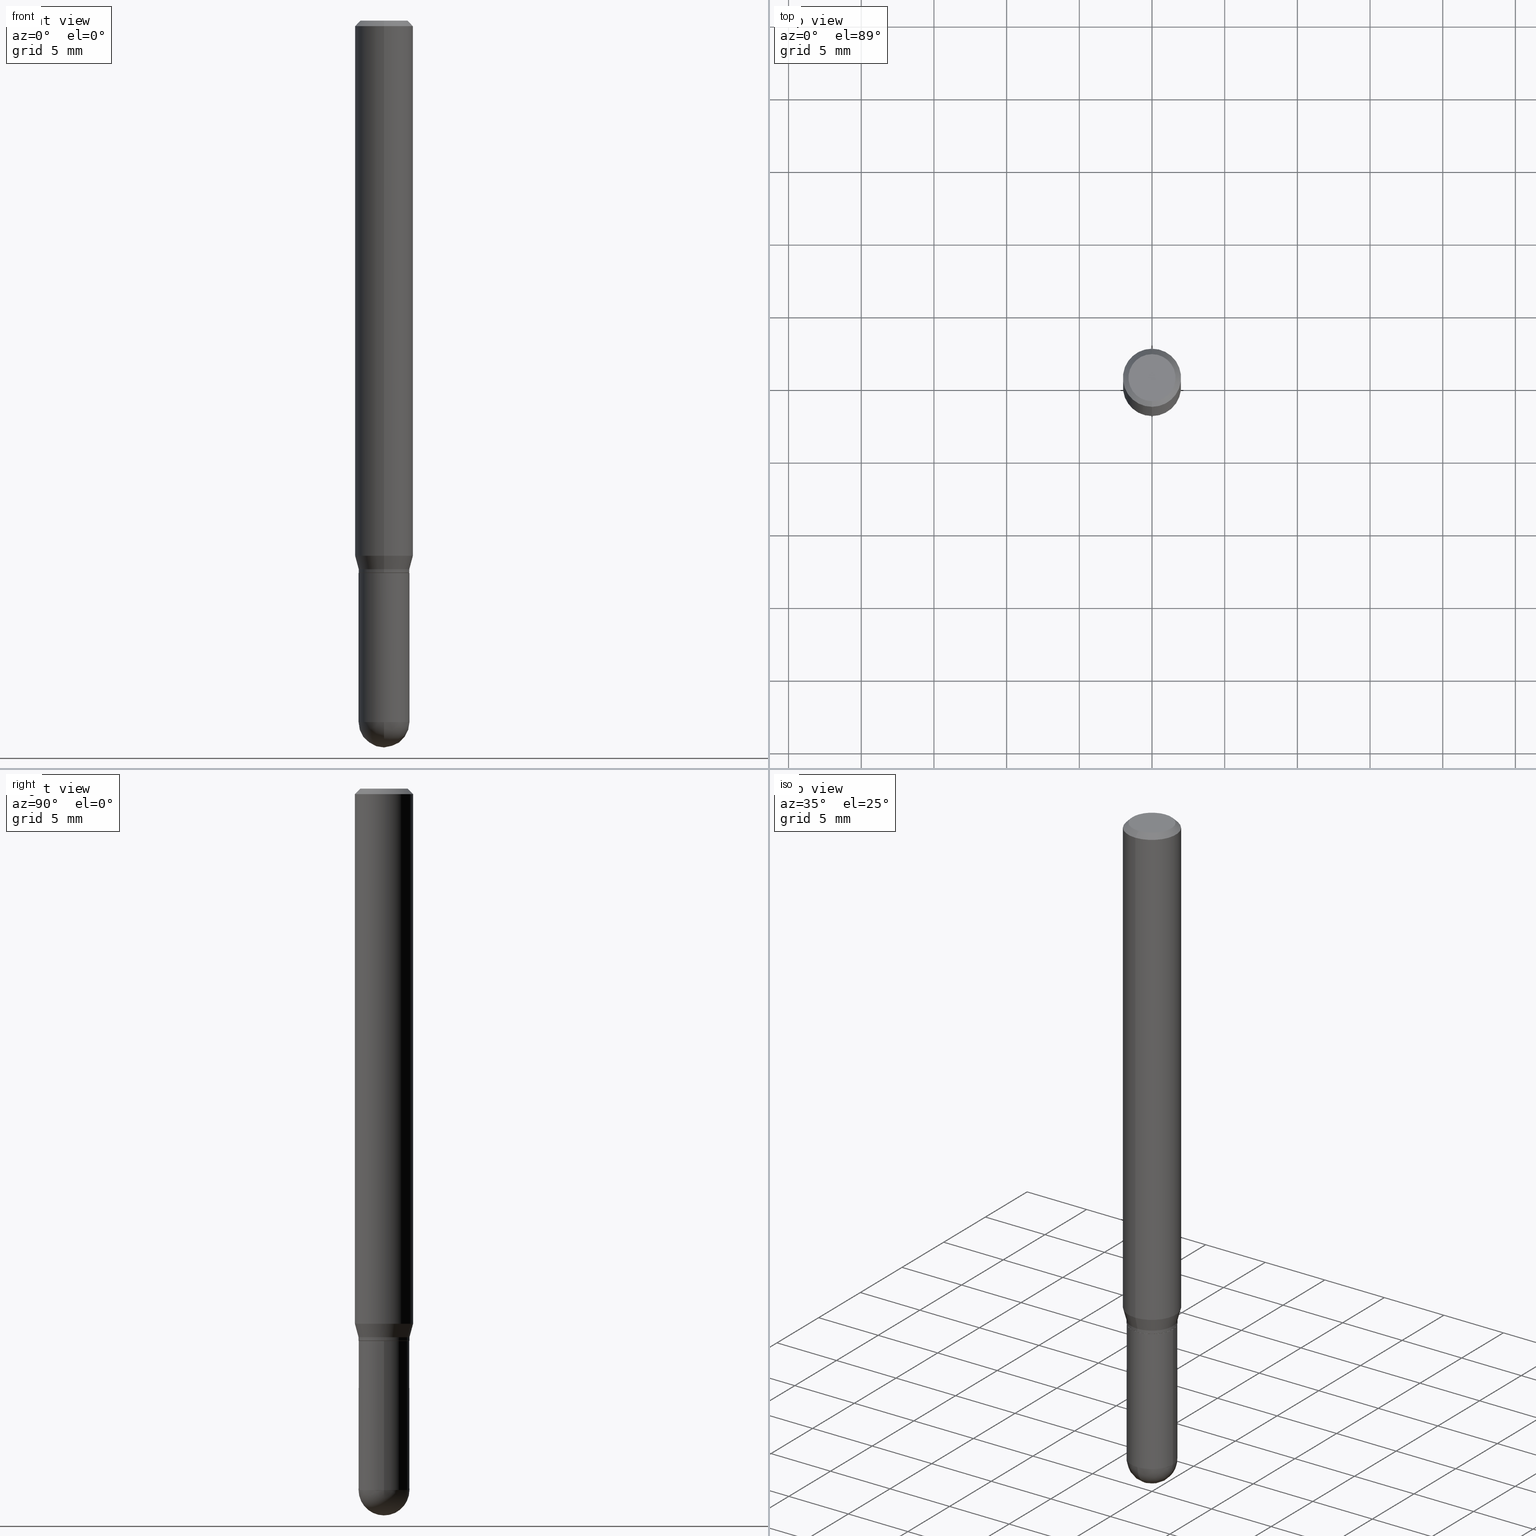
[diagram: canonical four-view strip — front | top / right | iso, engineering-drawing reading convention]
A machine part, canonical four-view strip (front | top / right | iso — engineering-drawing reading convention). The complete STEP part file that produces these views, byte-faithful:
ISO-10303-21;
HEADER;
FILE_DESCRIPTION (( 'STEP AP203' ),
    '1' );
FILE_NAME ('40526.STEP',
    '2024-03-08T13:01:02',
    ( '' ),
    ( '' ),
    'SwSTEP 2.0',
    'SolidWorks 2023',
    '' );
FILE_SCHEMA (( 'CONFIG_CONTROL_DESIGN' ));
ENDSEC;

DATA;
#1 = PERSON_AND_ORGANIZATION_ROLE ( 'creator' ) ;
#2 = LINE ( 'NONE', #61, #482 ) ;
#3 = CC_DESIGN_PERSON_AND_ORGANIZATION_ASSIGNMENT ( #377, #1, ( #405 ) ) ;
#4 = FACE_OUTER_BOUND ( 'NONE', #173, .T. ) ;
#5 = FACE_OUTER_BOUND ( 'NONE', #193, .T. ) ;
#6 = DIRECTION ( 'NONE',  ( 1.000000000000000000, -6.982962677686273021E-15, 0.000000000000000000 ) ) ;
#7 = CARTESIAN_POINT ( 'NONE',  ( 4.645412544229285965E-29, -6.632417951266439838E-15, -1.899600000000000177 ) ) ;
#8 = EDGE_CURVE ( 'NONE', #423, #178, #62, .T. ) ;
#9 = APPROVAL_PERSON_ORGANIZATION ( #468, #340, #112 ) ;
#10 = AXIS2_PLACEMENT_3D ( 'NONE', #34, #184, #345 ) ;
#11 = CC_DESIGN_PERSON_AND_ORGANIZATION_ASSIGNMENT ( #304, #471, ( #435 ) ) ;
#12 = AXIS2_PLACEMENT_3D ( 'NONE', #35, #185, #194 ) ;
#13 = CARTESIAN_POINT ( 'NONE',  ( -4.776346471537044438E-16, -0.06840000000000528990, -1.496099999999999541 ) ) ;
#14 = EDGE_LOOP ( 'NONE', ( #258, #502 ) ) ;
#15 = APPLICATION_CONTEXT ( 'configuration controlled 3d designs of mechanical parts and assemblies' ) ;
#16 = EDGE_CURVE ( 'NONE', #111, #494, #409, .T. ) ;
#17 = CARTESIAN_POINT ( 'NONE',  ( 5.595524044111143991E-16, 0.07874999999999994504, -0.01500000000000017292 ) ) ;
#18 = AXIS2_PLACEMENT_3D ( 'NONE', #239, #192, #351 ) ;
#19 = CC_DESIGN_APPROVAL ( #340, ( #405 ) ) ;
#20 = VERTEX_POINT ( 'NONE', #143 ) ;
#21 = CARTESIAN_POINT ( 'NONE',  ( 3.659741478239010346E-29, -5.222064914482659693E-15, -1.496099999999999985 ) ) ;
#22 = FACE_OUTER_BOUND ( 'NONE', #336, .T. ) ;
#23 = EDGE_CURVE ( 'NONE', #71, #271, #56, .T. ) ;
#24 = ORIENTED_EDGE ( 'NONE', *, *, #33, .T. ) ;
#25 = ORIENTED_EDGE ( 'NONE', *, *, #279, .T. ) ;
#26 = DIRECTION ( 'NONE',  ( -6.982962677686265922E-15, -1.000000000000000000, 3.490451784294271449E-15 ) ) ;
#27 = AXIS2_PLACEMENT_3D ( 'NONE', #195, #437, #281 ) ;
#28 = ORIENTED_EDGE ( 'NONE', *, *, #234, .T. ) ;
#29 = VERTEX_POINT ( 'NONE', #381 ) ;
#30 = PERSON_AND_ORGANIZATION ( #134, #85 ) ;
#31 = CARTESIAN_POINT ( 'NONE',  ( 4.975360907851465623E-16, 0.06375000000000000111, -1.198509431423783275E-16 ) ) ;
#32 = ORIENTED_EDGE ( 'NONE', *, *, #410, .F. ) ;
#33 = EDGE_CURVE ( 'NONE', #494, #178, #132, .T. ) ;
#34 = CARTESIAN_POINT ( 'NONE',  ( 3.669281610426094328E-31, -5.235677676441372167E-17, -0.01499999999999989710 ) ) ;
#35 = CARTESIAN_POINT ( 'NONE',  ( 0.000000000000000000, 0.000000000000000000, 0.000000000000000000 ) ) ;
#36 = LOCAL_TIME ( 8, 1, 2.000000000000000000, #380 ) ;
#37 = CONICAL_SURFACE ( 'NONE', #366, 0.06840000000000005798, 0.7853981633974739252 ) ;
#38 = ORIENTED_EDGE ( 'NONE', *, *, #398, .F. ) ;
#39 = AXIS2_PLACEMENT_3D ( 'NONE', #180, #339, #499 ) ;
#40 = SECURITY_CLASSIFICATION_LEVEL ( 'unclassified' ) ;
#41 = DIRECTION ( 'NONE',  ( -2.445468806185136877E-29, 3.491481338843145188E-15, 1.000000000000000000 ) ) ;
#42 = CARTESIAN_POINT ( 'NONE',  ( 3.545356026059983484E-29, -5.058848944146210267E-15, -1.449339299545445714 ) ) ;
#43 = EDGE_LOOP ( 'NONE', ( #102, #333, #295, #262 ) ) ;
#44 = DIRECTION ( 'NONE',  ( -2.446187740284079292E-29, 3.490451784294271843E-15, 1.000000000000000000 ) ) ;
#45 = DIRECTION ( 'NONE',  ( -6.982962677686266711E-15, -1.000000000000000000, 3.964946289788496674E-15 ) ) ;
#46 = CARTESIAN_POINT ( 'NONE',  ( 4.895639449387433642E-16, 0.06889999999999453506, -1.486100000000000199 ) ) ;
#47 = AXIS2_PLACEMENT_3D ( 'NONE', #428, #77, #393 ) ;
#48 = AXIS2_PLACEMENT_3D ( 'NONE', #447, #168, #450 ) ;
#49 = CARTESIAN_POINT ( 'NONE',  ( -4.776346471537044438E-16, -0.06840000000000528990, -1.496099999999999541 ) ) ;
#50 = FACE_OUTER_BOUND ( 'NONE', #140, .T. ) ;
#51 = DIRECTION ( 'NONE',  ( -2.446187740284079292E-29, 3.490451784294271843E-15, 1.000000000000000000 ) ) ;
#52 = DIRECTION ( 'NONE',  ( 1.000000000000000000, -6.982962677686273021E-15, 0.000000000000000000 ) ) ;
#53 = ORIENTED_EDGE ( 'NONE', *, *, #247, .T. ) ;
#54 = DIRECTION ( 'NONE',  ( 1.000000000000000000, -6.982962677686265922E-15, 4.876176775795935232E-29 ) ) ;
#55 = LOCAL_TIME ( 8, 1, 2.000000000000000000, #79 ) ;
#56 = CIRCLE ( 'NONE', #315, 0.06889999999999998903 ) ;
#57 = AXIS2_PLACEMENT_3D ( 'NONE', #509, #277, #75 ) ;
#58 = DIRECTION ( 'NONE',  ( -2.445468806185136597E-29, 3.491481338843145583E-15, 1.000000000000000000 ) ) ;
#59 = ORIENTED_EDGE ( 'NONE', *, *, #89, .F. ) ;
#60 = ORIENTED_EDGE ( 'NONE', *, *, #128, .T. ) ;
#61 = CARTESIAN_POINT ( 'NONE',  ( 4.895639449387079640E-16, 0.06889999999999986413, -2.404921279378748474E-16 ) ) ;
#62 = LINE ( 'NONE', #341, #302 ) ;
#63 = DESIGN_CONTEXT ( 'detailed design', #15, 'design' ) ;
#64 = AXIS2_PLACEMENT_3D ( 'NONE', #291, #495, #95 ) ;
#65 = DIRECTION ( 'NONE',  ( -6.982962677686266711E-15, -1.000000000000000000, 3.964946289788496674E-15 ) ) ;
#66 = ORIENTED_EDGE ( 'NONE', *, *, #89, .T. ) ;
#67 =( NAMED_UNIT ( * ) SI_UNIT ( $, .STERADIAN. ) SOLID_ANGLE_UNIT ( ) );
#68 = DIRECTION ( 'NONE',  ( -4.851104656540964275E-15, -0.7071067811865500152, -0.7071067811865450192 ) ) ;
#69 = DIRECTION ( 'NONE',  ( -2.446187740284079012E-29, 3.490451784294271449E-15, 1.000000000000000000 ) ) ;
#70 = ADVANCED_FACE ( 'NONE', ( #506 ), #151, .T. ) ;
#71 = VERTEX_POINT ( 'NONE', #318 ) ;
#72 = PERSON_AND_ORGANIZATION ( #134, #85 ) ;
#73 = PRODUCT_DEFINITION_SHAPE ( 'NONE', 'NONE',  #435 ) ;
#74 = CC_DESIGN_APPROVAL ( #157, ( #207 ) ) ;
#75 = DIRECTION ( 'NONE',  ( -6.982962677686265922E-15, -1.000000000000000000, 3.490451784294271843E-15 ) ) ;
#76 = AXIS2_PLACEMENT_3D ( 'NONE', #321, #313, #83 ) ;
#77 = DIRECTION ( 'NONE',  ( -2.446187740284079292E-29, 3.490451784294271843E-15, 1.000000000000000000 ) ) ;
#78 = ADVANCED_FACE ( 'NONE', ( #4 ), #37, .T. ) ;
#79 = COORDINATED_UNIVERSAL_TIME_OFFSET ( 5, 0, .BEHIND. ) ;
#80 = CARTESIAN_POINT ( 'NONE',  ( 0.06890000000000007230, -5.704731359535814187E-15, -1.496099999999999985 ) ) ;
#81 = CARTESIAN_POINT ( 'NONE',  ( 3.635279600836171081E-29, -5.187160396639717196E-15, -1.486099999999999977 ) ) ;
#82 = DIRECTION ( 'NONE',  ( 2.438088387897960049E-29, -3.491481338843145188E-15, -1.000000000000000000 ) ) ;
#83 = DIRECTION ( 'NONE',  ( -6.982962677686264344E-15, -1.000000000000000000, 3.490451784294271449E-15 ) ) ;
#84 = DIRECTION ( 'NONE',  ( -6.982962677686266711E-15, -1.000000000000000000, 3.964946289788496674E-15 ) ) ;
#85 = ORGANIZATION ( 'UNSPECIFIED', 'UNSPECIFIED', '' ) ;
#86 = DIRECTION ( 'NONE',  ( -2.445468806185136597E-29, 3.491481338843145583E-15, 1.000000000000000000 ) ) ;
#87 = AXIS2_PLACEMENT_3D ( 'NONE', #90, #51, #203 ) ;
#88 =( GEOMETRIC_REPRESENTATION_CONTEXT ( 3 ) GLOBAL_UNCERTAINTY_ASSIGNED_CONTEXT ( ( #172 ) ) GLOBAL_UNIT_ASSIGNED_CONTEXT ( ( #404, #205, #67 ) ) REPRESENTATION_CONTEXT ( 'NONE', 'WORKASPACE' ) );
#89 = EDGE_CURVE ( 'NONE', #423, #111, #220, .T. ) ;
#90 = CARTESIAN_POINT ( 'NONE',  ( 0.000000000000000000, 0.000000000000000000, 0.000000000000000000 ) ) ;
#91 = CARTESIAN_POINT ( 'NONE',  ( 3.658518384368868748E-29, -5.220319688590513476E-15, -1.495600000000000041 ) ) ;
#92 = EDGE_CURVE ( 'NONE', #347, #20, #107, .T. ) ;
#93 = CARTESIAN_POINT ( 'NONE',  ( -0.06890000000000007230, 4.895639449387095418E-16, -3.389146277185633520E-30 ) ) ;
#94 = CARTESIAN_POINT ( 'NONE',  ( 4.851357352610053575E-29, -6.819347608944073688E-15, -1.968500000000000139 ) ) ;
#95 = DIRECTION ( 'NONE',  ( -6.982962677686266711E-15, -1.000000000000000000, 3.993929815298627073E-15 ) ) ;
#96 = ORIENTED_EDGE ( 'NONE', *, *, #432, .T. ) ;
#97 = CIRCLE ( 'NONE', #266, 0.06375000000000000111 ) ;
#98 = DIRECTION ( 'NONE',  ( 2.446187740284079292E-29, -3.490451784294271449E-15, -1.000000000000000000 ) ) ;
#99 = AXIS2_PLACEMENT_3D ( 'NONE', #476, #82, #123 ) ;
#100 = CC_DESIGN_DATE_AND_TIME_ASSIGNMENT ( #348, #511, ( #207 ) ) ;
#101 = DIRECTION ( 'NONE',  ( -2.446187740284079012E-29, 3.490451784294271449E-15, 1.000000000000000000 ) ) ;
#102 = ORIENTED_EDGE ( 'NONE', *, *, #206, .T. ) ;
#103 = ORIENTED_EDGE ( 'NONE', *, *, #8, .T. ) ;
#104 = VERTEX_POINT ( 'NONE', #479 ) ;
#105 = CALENDAR_DATE ( 2024, 8, 3 ) ;
#106 = EDGE_CURVE ( 'NONE', #459, #29, #375, .T. ) ;
#107 = CIRCLE ( 'NONE', #385, 0.06890000000000007230 ) ;
#108 = LINE ( 'NONE', #267, #124 ) ;
#109 = ORIENTED_EDGE ( 'NONE', *, *, #442, .T. ) ;
#110 = ORIENTED_EDGE ( 'NONE', *, *, #403, .T. ) ;
#111 = VERTEX_POINT ( 'NONE', #359 ) ;
#112 = APPROVAL_ROLE ( '' ) ;
#113 = EDGE_CURVE ( 'NONE', #272, #111, #323, .T. ) ;
#114 = VERTEX_POINT ( 'NONE', #154 ) ;
#115 = PERSON_AND_ORGANIZATION ( #134, #85 ) ;
#116 = CARTESIAN_POINT ( 'NONE',  ( 3.659741478239010346E-29, -5.222064914482659693E-15, -1.496099999999999985 ) ) ;
#117 = AXIS2_PLACEMENT_3D ( 'NONE', #125, #278, #120 ) ;
#118 = CARTESIAN_POINT ( 'NONE',  ( 0.06890000000000008618, -6.409137719647418882E-15, -1.899600000000000177 ) ) ;
#119 = SHAPE_DEFINITION_REPRESENTATION ( #73, #480 ) ;
#120 = DIRECTION ( 'NONE',  ( 6.982962677686265922E-15, 1.000000000000000000, -3.964946289788482474E-15 ) ) ;
#121 = CARTESIAN_POINT ( 'NONE',  ( 3.669281610426094328E-31, -5.235677676441372167E-17, -0.01499999999999989710 ) ) ;
#122 = EDGE_CURVE ( 'NONE', #378, #268, #276, .T. ) ;
#123 = DIRECTION ( 'NONE',  ( -1.000000000000000000, 6.982962677686265922E-15, -4.876176775795935793E-29 ) ) ;
#124 = VECTOR ( 'NONE', #68, 39.37007874015748143 ) ;
#125 = CARTESIAN_POINT ( 'NONE',  ( 4.679918503997674770E-29, -6.583003452920844326E-15, -1.899600000000000177 ) ) ;
#126 = VECTOR ( 'NONE', #390, 39.37007874015748854 ) ;
#127 = CIRCLE ( 'NONE', #64, 0.06840000000000005798 ) ;
#128 = EDGE_CURVE ( 'NONE', #111, #423, #334, .T. ) ;
#129 = CARTESIAN_POINT ( 'NONE',  ( -4.811261284925827524E-16, -0.06889999999999986413, 2.404921279378748474E-16 ) ) ;
#130 = ADVANCED_FACE ( 'NONE', ( #5 ), #444, .T. ) ;
#131 = MANIFOLD_SOLID_BREP ( 'Body-Move/Copy2[1]', #355 ) ;
#132 = CIRCLE ( 'NONE', #10, 0.07875000000000000056 ) ;
#133 = CARTESIAN_POINT ( 'NONE',  ( 5.499083108677937401E-16, 0.07874999999999994504, -0.01500000000000017292 ) ) ;
#134 = PERSON ( 'UNSPECIFIED', 'UNSPECIFIED', 'UNSPECIFIED', ('UNSPECIFIED'), ('UNSPECIFIED'), ('UNSPECIFIED') ) ;
#135 = PLANE ( 'NONE',  #451 ) ;
#136 = ADVANCED_FACE ( 'NONE', ( #50 ), #285, .T. ) ;
#137 = ORIENTED_EDGE ( 'NONE', *, *, #153, .F. ) ;
#138 =( LENGTH_UNIT ( ) NAMED_UNIT ( * ) SI_UNIT ( $, .METRE. ) );
#139 = ADVANCED_FACE ( 'NONE', ( #156 ), #453, .T. ) ;
#140 = EDGE_LOOP ( 'NONE', ( #445, #226, #455, #310 ) ) ;
#141 = PERSON_AND_ORGANIZATION_ROLE ( 'classification_officer' ) ;
#142 = CARTESIAN_POINT ( 'NONE',  ( -4.811261284925468592E-16, -0.06890000000000517932, -1.495599999999999818 ) ) ;
#143 = CARTESIAN_POINT ( 'NONE',  ( -0.06890000000000007230, -5.438447646216124813E-15, -1.496099999999999985 ) ) ;
#144 = EDGE_LOOP ( 'NONE', ( #174, #470 ) ) ;
#145 = LOCAL_TIME ( 8, 1, 2.000000000000000000, #465 ) ;
#146 = AXIS2_PLACEMENT_3D ( 'NONE', #42, #242, #395 ) ;
#147 = FACE_OUTER_BOUND ( 'NONE', #463, .T. ) ;
#148 = CARTESIAN_POINT ( 'NONE',  ( 5.595524044110786045E-16, 0.07874999999999997280, -2.748730780131737952E-16 ) ) ;
#149 = ORIENTED_EDGE ( 'NONE', *, *, #384, .F. ) ;
#150 = APPROVAL_ROLE ( '' ) ;
#151 = CYLINDRICAL_SURFACE ( 'NONE', #18, 0.06890000000000007230 ) ;
#152 = COORDINATED_UNIVERSAL_TIME_OFFSET ( 5, 0, .BEHIND. ) ;
#153 = EDGE_CURVE ( 'NONE', #178, #494, #488, .T. ) ;
#154 = CARTESIAN_POINT ( 'NONE',  ( 4.811261284926304785E-16, 0.06889999999999341096, -1.899600000000000399 ) ) ;
#155 = DIRECTION ( 'NONE',  ( -1.807323732225323828E-15, -0.2588190451025172978, 0.9659258262890690894 ) ) ;
#156 = FACE_OUTER_BOUND ( 'NONE', #188, .T. ) ;
#157 = APPROVAL ( #179, 'UNSPECIFIED' ) ;
#158 = DIRECTION ( 'NONE',  ( -2.445468806185136597E-29, 3.491481338843145583E-15, 1.000000000000000000 ) ) ;
#159 = DIRECTION ( 'NONE',  ( 1.000000000000000000, -6.982962677686273021E-15, 0.000000000000000000 ) ) ;
#160 = EDGE_LOOP ( 'NONE', ( #109, #110, #289, #414, #307 ) ) ;
#161 = CARTESIAN_POINT ( 'NONE',  ( -5.499083108677930499E-16, -0.07875000000000004219, -0.01499999999999962301 ) ) ;
#162 = AXIS2_PLACEMENT_3D ( 'NONE', #200, #357, #400 ) ;
#163 = CONICAL_SURFACE ( 'NONE', #484, 0.07875000000000000056, 0.7853981633974483900 ) ;
#164 = EDGE_CURVE ( 'NONE', #29, #167, #218, .T. ) ;
#165 = CARTESIAN_POINT ( 'NONE',  ( 4.451638707024993845E-16, 0.06375000000000000111, -1.711836221955690772E-16 ) ) ;
#166 = CIRCLE ( 'NONE', #209, 0.06890000000000007230 ) ;
#167 = VERTEX_POINT ( 'NONE', #118 ) ;
#168 = DIRECTION ( 'NONE',  ( -2.445468806185136597E-29, 3.491481338843145583E-15, 1.000000000000000000 ) ) ;
#169 = DIRECTION ( 'NONE',  ( -6.982962677686265922E-15, -1.000000000000000000, 3.964946289788481685E-15 ) ) ;
#170 = LINE ( 'NONE', #133, #199 ) ;
#171 = VERTEX_POINT ( 'NONE', #481 ) ;
#172 = UNCERTAINTY_MEASURE_WITH_UNIT (LENGTH_MEASURE( 1.000000000000000082E-05 ), #404, 'distance_accuracy_value', 'NONE');
#173 = EDGE_LOOP ( 'NONE', ( #497, #96, #303, #496 ) ) ;
#174 = ORIENTED_EDGE ( 'NONE', *, *, #92, .T. ) ;
#175 = DIRECTION ( 'NONE',  ( -2.446187740284079292E-29, 3.490451784294271843E-15, 1.000000000000000000 ) ) ;
#176 = ADVANCED_FACE ( 'NONE', ( #477 ), #441, .T. ) ;
#177 = VERTEX_POINT ( 'NONE', #360 ) ;
#178 = VERTEX_POINT ( 'NONE', #161 ) ;
#179 = APPROVAL_STATUS ( 'not_yet_approved' ) ;
#180 = CARTESIAN_POINT ( 'NONE',  ( 4.679918503997674770E-29, -6.583003452920844326E-15, -1.899600000000000177 ) ) ;
#181 = EDGE_LOOP ( 'NONE', ( #407, #219, #460, #25, #149 ) ) ;
#182 = PERSON_AND_ORGANIZATION_ROLE ( 'design_owner' ) ;
#183 = CARTESIAN_POINT ( 'NONE',  ( 0.06890000000000007230, -4.811261284925842315E-16, 3.359685798523402771E-30 ) ) ;
#184 = DIRECTION ( 'NONE',  ( -2.446187740284079292E-29, 3.490451784294271843E-15, 1.000000000000000000 ) ) ;
#185 = DIRECTION ( 'NONE',  ( 0.000000000000000000, 0.000000000000000000, 1.000000000000000000 ) ) ;
#186 = AXIS2_PLACEMENT_3D ( 'NONE', #392, #158, #283 ) ;
#187 = CIRCLE ( 'NONE', #415, 0.06890000000000007230 ) ;
#188 = EDGE_LOOP ( 'NONE', ( #293, #53, #327, #500 ) ) ;
#189 = CALENDAR_DATE ( 2024, 8, 3 ) ;
#190 = APPROVAL ( #338, 'UNSPECIFIED' ) ;
#191 = LINE ( 'NONE', #93, #344 ) ;
#192 = DIRECTION ( 'NONE',  ( -2.445468806185136597E-29, 3.491481338843145583E-15, 1.000000000000000000 ) ) ;
#193 = EDGE_LOOP ( 'NONE', ( #337, #38, #461, #24 ) ) ;
#194 = DIRECTION ( 'NONE',  ( 1.000000000000000000, 0.000000000000000000, 0.000000000000000000 ) ) ;
#195 = CARTESIAN_POINT ( 'NONE',  ( 3.669281610426094328E-31, -5.235677676441372167E-17, -0.01499999999999989710 ) ) ;
#196 = FACE_OUTER_BOUND ( 'NONE', #379, .T. ) ;
#197 = AXIS2_PLACEMENT_3D ( 'NONE', #121, #399, #316 ) ;
#198 = ADVANCED_FACE ( 'NONE', ( #486 ), #274, .T. ) ;
#199 = VECTOR ( 'NONE', #332, 39.37007874015748143 ) ;
#200 = CARTESIAN_POINT ( 'NONE',  ( 3.545356026059983484E-29, -5.058848944146210267E-15, -1.449339299545445714 ) ) ;
#201 = CARTESIAN_POINT ( 'NONE',  ( 3.658665880933582389E-29, -5.223605231043229660E-15, -1.496099999999999985 ) ) ;
#202 = DIRECTION ( 'NONE',  ( -2.446187740284079292E-29, 3.490451784294271843E-15, 1.000000000000000000 ) ) ;
#203 = DIRECTION ( 'NONE',  ( -6.982962677686265922E-15, -1.000000000000000000, 3.490451784294271449E-15 ) ) ;
#204 = DIRECTION ( 'NONE',  ( -2.446187740284079012E-29, 3.490451784294271449E-15, 1.000000000000000000 ) ) ;
#205 =( NAMED_UNIT ( * ) PLANE_ANGLE_UNIT ( ) SI_UNIT ( $, .RADIAN. ) );
#206 = EDGE_CURVE ( 'NONE', #271, #71, #287, .T. ) ;
#207 = SECURITY_CLASSIFICATION ( '', '', #40 ) ;
#208 = EDGE_CURVE ( 'NONE', #104, #29, #166, .T. ) ;
#209 = AXIS2_PLACEMENT_3D ( 'NONE', #401, #58, #52 ) ;
#210 = AXIS2_PLACEMENT_3D ( 'NONE', #294, #462, #65 ) ;
#211 = EDGE_CURVE ( 'NONE', #271, #177, #369, .T. ) ;
#212 = CARTESIAN_POINT ( 'NONE',  ( 0.000000000000000000, 0.000000000000000000, 0.000000000000000000 ) ) ;
#213 = DIRECTION ( 'NONE',  ( 6.982962677686265922E-15, 1.000000000000000000, 0.000000000000000000 ) ) ;
#214 = DIRECTION ( 'NONE',  ( -2.446187740284079012E-29, 3.490451784294271449E-15, 1.000000000000000000 ) ) ;
#215 = FACE_OUTER_BOUND ( 'NONE', #259, .T. ) ;
#216 = CC_DESIGN_PERSON_AND_ORGANIZATION_ASSIGNMENT ( #72, #228, ( #405 ) ) ;
#217 = ORIENTED_EDGE ( 'NONE', *, *, #153, .T. ) ;
#218 = CIRCLE ( 'NONE', #263, 0.06890000000000007230 ) ;
#219 = ORIENTED_EDGE ( 'NONE', *, *, #208, .T. ) ;
#220 = CIRCLE ( 'NONE', #146, 0.07874999999999997280 ) ;
#221 = FACE_OUTER_BOUND ( 'NONE', #411, .T. ) ;
#222 = VERTEX_POINT ( 'NONE', #13 ) ;
#223 = EDGE_LOOP ( 'NONE', ( #66, #424, #137, #363 ) ) ;
#224 = DIRECTION ( 'NONE',  ( -6.982962677686265922E-15, -1.000000000000000000, 3.964946289788481685E-15 ) ) ;
#225 = APPROVAL_DATE_TIME ( #342, #190 ) ;
#226 = ORIENTED_EDGE ( 'NONE', *, *, #237, .T. ) ;
#227 = ORIENTED_EDGE ( 'NONE', *, *, #370, .T. ) ;
#228 = PERSON_AND_ORGANIZATION_ROLE ( 'design_supplier' ) ;
#229 = CC_DESIGN_APPROVAL ( #190, ( #435 ) ) ;
#230 = AXIS2_PLACEMENT_3D ( 'NONE', #21, #175, #330 ) ;
#231 = DIRECTION ( 'NONE',  ( -4.937700262164674260E-15, -0.7071067811865632269, 0.7071067811865319186 ) ) ;
#232 = DIRECTION ( 'NONE',  ( -1.000000000000000000, 7.105427357601001070E-15, -4.926315508542082329E-29 ) ) ;
#233 = DATE_AND_TIME ( #387, #145 ) ;
#234 = EDGE_CURVE ( 'NONE', #177, #272, #284, .T. ) ;
#235 = DIRECTION ( 'NONE',  ( -2.445468806185136597E-29, 3.491481338843145583E-15, 1.000000000000000000 ) ) ;
#236 = DIRECTION ( 'NONE',  ( -2.446187740284079292E-29, 3.490451784294271843E-15, 1.000000000000000000 ) ) ;
#237 = EDGE_CURVE ( 'NONE', #459, #114, #483, .T. ) ;
#238 = DIRECTION ( 'NONE',  ( -2.446187740284079292E-29, 3.490451784294271843E-15, 1.000000000000000000 ) ) ;
#239 = CARTESIAN_POINT ( 'NONE',  ( 0.000000000000000000, 0.000000000000000000, 0.000000000000000000 ) ) ;
#240 = LINE ( 'NONE', #49, #255 ) ;
#241 = AXIS2_PLACEMENT_3D ( 'NONE', #81, #202, #45 ) ;
#242 = DIRECTION ( 'NONE',  ( -2.446187740284079292E-29, 3.490451784294271843E-15, 1.000000000000000000 ) ) ;
#243 = CARTESIAN_POINT ( 'NONE',  ( 3.659741478239010346E-29, -5.222064914482659693E-15, -1.496099999999999985 ) ) ;
#244 = AXIS2_PLACEMENT_3D ( 'NONE', #431, #232, #434 ) ;
#245 = ORIENTED_EDGE ( 'NONE', *, *, #106, .T. ) ;
#246 = DIRECTION ( 'NONE',  ( -2.446187740284079292E-29, 3.490451784294271449E-15, 1.000000000000000000 ) ) ;
#247 = EDGE_CURVE ( 'NONE', #272, #177, #292, .T. ) ;
#248 = ORIENTED_EDGE ( 'NONE', *, *, #297, .F. ) ;
#249 = CC_DESIGN_PERSON_AND_ORGANIZATION_ASSIGNMENT ( #275, #141, ( #207 ) ) ;
#250 = LENGTH_MEASURE_WITH_UNIT ( LENGTH_MEASURE( 0.02539999999999999897 ), #138 );
#251 = VECTOR ( 'NONE', #368, 39.37007874015748143 ) ;
#252 = ADVANCED_FACE ( 'NONE', ( #221 ), #456, .T. ) ;
#253 = ORIENTED_EDGE ( 'NONE', *, *, #23, .F. ) ;
#254 = AXIS2_PLACEMENT_3D ( 'NONE', #261, #413, #213 ) ;
#255 = VECTOR ( 'NONE', #231, 39.37007874015748143 ) ;
#256 = DIRECTION ( 'NONE',  ( 6.982962677686265922E-15, 1.000000000000000000, -3.490451784294271449E-15 ) ) ;
#257 = FACE_OUTER_BOUND ( 'NONE', #181, .T. ) ;
#258 = ORIENTED_EDGE ( 'NONE', *, *, #501, .F. ) ;
#259 = EDGE_LOOP ( 'NONE', ( #382, #376 ) ) ;
#260 = CARTESIAN_POINT ( 'NONE',  ( -5.499083108677578469E-16, -0.07875000000000501044, -1.449339299545445270 ) ) ;
#261 = CARTESIAN_POINT ( 'NONE',  ( 4.679918503997674770E-29, -6.583003452920844326E-15, -1.899600000000000177 ) ) ;
#262 = ORIENTED_EDGE ( 'NONE', *, *, #211, .F. ) ;
#263 = AXIS2_PLACEMENT_3D ( 'NONE', #7, #86, #159 ) ;
#264 = ORIENTED_EDGE ( 'NONE', *, *, #432, .F. ) ;
#265 = DATE_AND_TIME ( #425, #438 ) ;
#266 = AXIS2_PLACEMENT_3D ( 'NONE', #389, #44, #443 ) ;
#267 = CARTESIAN_POINT ( 'NONE',  ( -5.402642173245076924E-16, -0.07875000000000004219, -0.01499999999999962301 ) ) ;
#268 = VERTEX_POINT ( 'NONE', #31 ) ;
#269 = DATE_TIME_ROLE ( 'creation_date' ) ;
#270 = DIRECTION ( 'NONE',  ( 2.446187740284079292E-29, -3.490451784294271843E-15, -1.000000000000000000 ) ) ;
#271 = VERTEX_POINT ( 'NONE', #142 ) ;
#272 = VERTEX_POINT ( 'NONE', #299 ) ;
#273 = LINE ( 'NONE', #433, #367 ) ;
#274 = CYLINDRICAL_SURFACE ( 'NONE', #47, 0.06889999999999986413 ) ;
#275 = PERSON_AND_ORGANIZATION ( #134, #85 ) ;
#276 = CIRCLE ( 'NONE', #76, 0.06375000000000000111 ) ;
#277 = DIRECTION ( 'NONE',  ( -2.446187740284079292E-29, 3.490451784294271843E-15, 1.000000000000000000 ) ) ;
#278 = DIRECTION ( 'NONE',  ( -1.000000000000000000, 6.982962677686265922E-15, -4.883557194083112901E-29 ) ) ;
#279 = EDGE_CURVE ( 'NONE', #167, #347, #504, .T. ) ;
#280 = DIRECTION ( 'NONE',  ( 1.000000000000000000, -6.982962677686273021E-15, 0.000000000000000000 ) ) ;
#281 = DIRECTION ( 'NONE',  ( -6.982962677686264344E-15, -1.000000000000000000, 3.496114991891765576E-15 ) ) ;
#282 = APPROVAL_PERSON_ORGANIZATION ( #30, #157, #150 ) ;
#283 = DIRECTION ( 'NONE',  ( 1.000000000000000000, -6.982962677686273021E-15, 0.000000000000000000 ) ) ;
#284 = CIRCLE ( 'NONE', #346, 0.06889999999999972535 ) ;
#285 = SPHERICAL_SURFACE ( 'NONE', #117, 0.06889999999999996128 ) ;
#286 = EDGE_CURVE ( 'NONE', #378, #178, #108, .T. ) ;
#287 = CIRCLE ( 'NONE', #439, 0.06889999999999998903 ) ;
#288 = CC_DESIGN_SECURITY_CLASSIFICATION ( #207, ( #405 ) ) ;
#289 = ORIENTED_EDGE ( 'NONE', *, *, #92, .F. ) ;
#290 = ADVANCED_FACE ( 'NONE', ( #147 ), #163, .T. ) ;
#291 = CARTESIAN_POINT ( 'NONE',  ( 3.659741478239010346E-29, -5.222064914482659693E-15, -1.496099999999999985 ) ) ;
#292 = CIRCLE ( 'NONE', #210, 0.06889999999999972535 ) ;
#293 = ORIENTED_EDGE ( 'NONE', *, *, #113, .F. ) ;
#294 = CARTESIAN_POINT ( 'NONE',  ( 3.635279600836171081E-29, -5.187160396639717196E-15, -1.486099999999999977 ) ) ;
#295 = ORIENTED_EDGE ( 'NONE', *, *, #234, .F. ) ;
#296 = ORIENTED_EDGE ( 'NONE', *, *, #33, .F. ) ;
#297 = EDGE_CURVE ( 'NONE', #177, #423, #273, .T. ) ;
#298 = MECHANICAL_CONTEXT ( 'NONE', #362, 'mechanical' ) ;
#299 = CARTESIAN_POINT ( 'NONE',  ( 5.245581746749287830E-16, 0.06889999999999453506, -1.486100000000000199 ) ) ;
#300 = AXIS2_PLACEMENT_3D ( 'NONE', #397, #430, #84 ) ;
#301 = DIRECTION ( 'NONE',  ( -2.446187740284079292E-29, 3.490451784294271843E-15, 1.000000000000000000 ) ) ;
#302 = VECTOR ( 'NONE', #69, 39.37007874015748143 ) ;
#303 = ORIENTED_EDGE ( 'NONE', *, *, #206, .F. ) ;
#304 = PERSON_AND_ORGANIZATION ( #134, #85 ) ;
#305 = CONICAL_SURFACE ( 'NONE', #300, 0.06889999999999972535, 0.2617993877991494078 ) ;
#306 = CARTESIAN_POINT ( 'NONE',  ( 3.669281610426094328E-31, -5.235677676441372167E-17, -0.01499999999999989710 ) ) ;
#307 = ORIENTED_EDGE ( 'NONE', *, *, #394, .T. ) ;
#308 = APPLICATION_PROTOCOL_DEFINITION ( 'international standard', 'config_control_design', 1994, #15 ) ;
#309 = ADVANCED_FACE ( 'NONE', ( #426 ), #312, .F. ) ;
#310 = ORIENTED_EDGE ( 'NONE', *, *, #164, .F. ) ;
#311 = ORIENTED_EDGE ( 'NONE', *, *, #122, .F. ) ;
#312 = PLANE ( 'NONE',  #329 ) ;
#313 = DIRECTION ( 'NONE',  ( -2.446187740284079292E-29, 3.490451784294271843E-15, 1.000000000000000000 ) ) ;
#314 = DATE_AND_TIME ( #391, #55 ) ;
#315 = AXIS2_PLACEMENT_3D ( 'NONE', #372, #301, #224 ) ;
#316 = DIRECTION ( 'NONE',  ( 6.982962677686264344E-15, 1.000000000000000000, -3.496114991891765576E-15 ) ) ;
#317 = DIRECTION ( 'NONE',  ( -6.982962677686265922E-15, -1.000000000000000000, 3.490451784294271449E-15 ) ) ;
#318 = CARTESIAN_POINT ( 'NONE',  ( 4.895639449387457308E-16, 0.06889999999999479874, -1.495600000000000263 ) ) ;
#319 = ADVANCED_FACE ( 'NONE', ( #353 ), #478, .F. ) ;
#320 = CYLINDRICAL_SURFACE ( 'NONE', #57, 0.06889999999999986413 ) ;
#321 = CARTESIAN_POINT ( 'NONE',  ( -2.511387403517051267E-45, 3.583484823876296715E-31, 1.026653581063814996E-16 ) ) ;
#322 = CIRCLE ( 'NONE', #186, 0.06890000000000007230 ) ;
#323 = LINE ( 'NONE', #46, #126 ) ;
#324 = ADVANCED_FACE ( 'NONE', ( #356 ), #507, .T. ) ;
#325 = ADVANCED_FACE ( 'NONE', ( #196 ), #320, .T. ) ;
#326 = CARTESIAN_POINT ( 'NONE',  ( 3.635279600836171081E-29, -5.187160396639717196E-15, -1.486099999999999977 ) ) ;
#327 = ORIENTED_EDGE ( 'NONE', *, *, #297, .T. ) ;
#328 = VECTOR ( 'NONE', #214, 39.37007874015748143 ) ;
#329 = AXIS2_PLACEMENT_3D ( 'NONE', #472, #246, #317 ) ;
#330 = DIRECTION ( 'NONE',  ( -6.982962677686266711E-15, -1.000000000000000000, 3.993929815298627073E-15 ) ) ;
#331 = LINE ( 'NONE', #446, #251 ) ;
#332 = DIRECTION ( 'NONE',  ( 4.937700262164548042E-15, 0.7071067811865451302, -0.7071067811865499042 ) ) ;
#333 = ORIENTED_EDGE ( 'NONE', *, *, #410, .T. ) ;
#334 = CIRCLE ( 'NONE', #162, 0.07874999999999997280 ) ;
#335 = ADVANCED_FACE ( 'NONE', ( #358 ), #305, .T. ) ;
#336 = EDGE_LOOP ( 'NONE', ( #402, #60, #103, #296 ) ) ;
#337 = ORIENTED_EDGE ( 'NONE', *, *, #286, .F. ) ;
#338 = APPROVAL_STATUS ( 'not_yet_approved' ) ;
#339 = DIRECTION ( 'NONE',  ( -1.000000000000000000, 6.982962677686265922E-15, -4.883557194083112901E-29 ) ) ;
#340 = APPROVAL ( #417, 'UNSPECIFIED' ) ;
#341 = CARTESIAN_POINT ( 'NONE',  ( -5.499083108677932471E-16, -0.07874999999999997280, 2.748730780131737952E-16 ) ) ;
#342 = DATE_AND_TIME ( #105, #36 ) ;
#343 = DIRECTION ( 'NONE',  ( -2.445468806185136877E-29, 3.491481338843145188E-15, 1.000000000000000000 ) ) ;
#344 = VECTOR ( 'NONE', #41, 39.37007874015748143 ) ;
#345 = DIRECTION ( 'NONE',  ( -6.982962677686264344E-15, -1.000000000000000000, 3.496114991891765576E-15 ) ) ;
#346 = AXIS2_PLACEMENT_3D ( 'NONE', #326, #487, #418 ) ;
#347 = VERTEX_POINT ( 'NONE', #80 ) ;
#348 = DATE_AND_TIME ( #189, #503 ) ;
#349 = CC_DESIGN_DATE_AND_TIME_ASSIGNMENT ( #233, #269, ( #435 ) ) ;
#350 = CARTESIAN_POINT ( 'NONE',  ( -4.888104823412213911E-16, -0.06375000000000000111, 3.251816593551413513E-16 ) ) ;
#351 = DIRECTION ( 'NONE',  ( 1.000000000000000000, -6.982962677686265922E-15, 4.876176775795935232E-29 ) ) ;
#352 = APPROVAL_DATE_TIME ( #265, #340 ) ;
#353 = FACE_OUTER_BOUND ( 'NONE', #144, .T. ) ;
#354 = CARTESIAN_POINT ( 'NONE',  ( 3.658665880933582389E-29, -5.223605231043229660E-15, -1.496099999999999985 ) ) ;
#355 = CLOSED_SHELL ( 'NONE', ( #70, #252, #319, #136, #485 ) ) ;
#356 = FACE_OUTER_BOUND ( 'NONE', #416, .T. ) ;
#357 = DIRECTION ( 'NONE',  ( -2.446187740284079292E-29, 3.490451784294271843E-15, 1.000000000000000000 ) ) ;
#358 = FACE_OUTER_BOUND ( 'NONE', #386, .T. ) ;
#359 = CARTESIAN_POINT ( 'NONE',  ( 5.595524044111142018E-16, 0.07874999999999494904, -1.449339299545445936 ) ) ;
#360 = CARTESIAN_POINT ( 'NONE',  ( -4.811261284925454787E-16, -0.06890000000000491565, -1.486099999999999755 ) ) ;
#361 = CC_DESIGN_PERSON_AND_ORGANIZATION_ASSIGNMENT ( #115, #182, ( #419 ) ) ;
#362 = APPLICATION_CONTEXT ( 'configuration controlled 3d designs of mechanical parts and assemblies' ) ;
#363 = ORIENTED_EDGE ( 'NONE', *, *, #8, .F. ) ;
#364 = CARTESIAN_POINT ( 'NONE',  ( 0.000000000000000000, 0.000000000000000000, 0.000000000000000000 ) ) ;
#365 = APPROVAL_PERSON_ORGANIZATION ( #508, #190, #429 ) ;
#366 = AXIS2_PLACEMENT_3D ( 'NONE', #243, #236, #474 ) ;
#367 = VECTOR ( 'NONE', #155, 39.37007874015748854 ) ;
#368 = DIRECTION ( 'NONE',  ( 5.024295867788190974E-15, 0.7071067811865681119, 0.7071067811865270336 ) ) ;
#369 = LINE ( 'NONE', #129, #505 ) ;
#370 = EDGE_CURVE ( 'NONE', #222, #271, #240, .T. ) ;
#371 = DIRECTION ( 'NONE',  ( -2.445468806185136597E-29, 3.491481338843145583E-15, 1.000000000000000000 ) ) ;
#372 = CARTESIAN_POINT ( 'NONE',  ( 3.658518384368868748E-29, -5.220319688590513476E-15, -1.495600000000000041 ) ) ;
#373 = DIRECTION ( 'NONE',  ( -2.446187740284079292E-29, 3.490451784294271843E-15, 1.000000000000000000 ) ) ;
#374 = ORIENTED_EDGE ( 'NONE', *, *, #286, .T. ) ;
#375 = CIRCLE ( 'NONE', #244, 0.06889999999999996128 ) ;
#376 = ORIENTED_EDGE ( 'NONE', *, *, #122, .T. ) ;
#377 = PERSON_AND_ORGANIZATION ( #134, #85 ) ;
#378 = VERTEX_POINT ( 'NONE', #350 ) ;
#379 = EDGE_LOOP ( 'NONE', ( #32, #510, #458, #464 ) ) ;
#380 = COORDINATED_UNIVERSAL_TIME_OFFSET ( 5, 0, .BEHIND. ) ;
#381 = CARTESIAN_POINT ( 'NONE',  ( -4.895639449386624073E-16, -0.06890000000000662261, -1.899599999999999955 ) ) ;
#382 = ORIENTED_EDGE ( 'NONE', *, *, #398, .T. ) ;
#383 = ORIENTED_EDGE ( 'NONE', *, *, #208, .F. ) ;
#384 = EDGE_CURVE ( 'NONE', #20, #347, #187, .T. ) ;
#385 = AXIS2_PLACEMENT_3D ( 'NONE', #354, #512, #280 ) ;
#386 = EDGE_LOOP ( 'NONE', ( #28, #469, #59, #248 ) ) ;
#387 = CALENDAR_DATE ( 2024, 8, 3 ) ;
#388 = CIRCLE ( 'NONE', #48, 0.06890000000000007230 ) ;
#389 = CARTESIAN_POINT ( 'NONE',  ( -2.511387403517051267E-45, 3.583484823876296715E-31, 1.026653581063814996E-16 ) ) ;
#390 = DIRECTION ( 'NONE',  ( 1.839019923739594004E-15, 0.2588190451025240701, 0.9659258262890673130 ) ) ;
#391 = CALENDAR_DATE ( 2024, 8, 3 ) ;
#392 = CARTESIAN_POINT ( 'NONE',  ( 4.645412544229285965E-29, -6.632417951266439838E-15, -1.899600000000000177 ) ) ;
#393 = DIRECTION ( 'NONE',  ( -6.982962677686265922E-15, -1.000000000000000000, 3.490451784294271843E-15 ) ) ;
#394 = EDGE_CURVE ( 'NONE', #167, #114, #322, .T. ) ;
#395 = DIRECTION ( 'NONE',  ( -6.982962677686265922E-15, -1.000000000000000000, 3.469013325287954477E-15 ) ) ;
#396 = VECTOR ( 'NONE', #343, 39.37007874015748143 ) ;
#397 = CARTESIAN_POINT ( 'NONE',  ( 3.635279600836171081E-29, -5.187160396639717196E-15, -1.486099999999999977 ) ) ;
#398 = EDGE_CURVE ( 'NONE', #268, #378, #97, .T. ) ;
#399 = DIRECTION ( 'NONE',  ( 2.446187740284079292E-29, -3.490451784294271843E-15, -1.000000000000000000 ) ) ;
#400 = DIRECTION ( 'NONE',  ( -6.982962677686265922E-15, -1.000000000000000000, 3.469013325287954477E-15 ) ) ;
#401 = CARTESIAN_POINT ( 'NONE',  ( 4.645412544229285965E-29, -6.632417951266439838E-15, -1.899600000000000177 ) ) ;
#402 = ORIENTED_EDGE ( 'NONE', *, *, #16, .F. ) ;
#403 = EDGE_CURVE ( 'NONE', #104, #20, #191, .T. ) ;
#404 =( CONVERSION_BASED_UNIT ( 'INCH', #250 ) LENGTH_UNIT ( ) NAMED_UNIT ( #452 ) );
#405 = PRODUCT_DEFINITION_FORMATION_WITH_SPECIFIED_SOURCE ( 'ANY', '', #419, .NOT_KNOWN. ) ;
#406 = CIRCLE ( 'NONE', #230, 0.06840000000000005798 ) ;
#407 = ORIENTED_EDGE ( 'NONE', *, *, #403, .F. ) ;
#408 = CYLINDRICAL_SURFACE ( 'NONE', #489, 0.06890000000000007230 ) ;
#409 = LINE ( 'NONE', #148, #328 ) ;
#410 = EDGE_CURVE ( 'NONE', #71, #272, #2, .T. ) ;
#411 = EDGE_LOOP ( 'NONE', ( #490, #245, #383, #420 ) ) ;
#412 = PRODUCT_RELATED_PRODUCT_CATEGORY ( 'detail', '', ( #419 ) ) ;
#413 = DIRECTION ( 'NONE',  ( 1.000000000000000000, -6.982962677686265922E-15, 4.883557194083112340E-29 ) ) ;
#414 = ORIENTED_EDGE ( 'NONE', *, *, #279, .F. ) ;
#415 = AXIS2_PLACEMENT_3D ( 'NONE', #201, #235, #6 ) ;
#416 = EDGE_LOOP ( 'NONE', ( #264, #466, #227, #253 ) ) ;
#417 = APPROVAL_STATUS ( 'not_yet_approved' ) ;
#418 = DIRECTION ( 'NONE',  ( -6.982962677686266711E-15, -1.000000000000000000, 3.964946289788496674E-15 ) ) ;
#419 = PRODUCT ( '40526', '40526', '', ( #298 ) ) ;
#420 = ORIENTED_EDGE ( 'NONE', *, *, #442, .F. ) ;
#421 = APPLICATION_PROTOCOL_DEFINITION ( 'international standard', 'config_control_design', 1994, #362 ) ;
#422 = DIRECTION ( 'NONE',  ( 6.982962677686264344E-15, 1.000000000000000000, -3.496114991891765576E-15 ) ) ;
#423 = VERTEX_POINT ( 'NONE', #260 ) ;
#424 = ORIENTED_EDGE ( 'NONE', *, *, #16, .T. ) ;
#425 = CALENDAR_DATE ( 2024, 8, 3 ) ;
#426 = FACE_OUTER_BOUND ( 'NONE', #14, .T. ) ;
#427 = EDGE_CURVE ( 'NONE', #268, #494, #170, .T. ) ;
#428 = CARTESIAN_POINT ( 'NONE',  ( 0.000000000000000000, 0.000000000000000000, 0.000000000000000000 ) ) ;
#429 = APPROVAL_ROLE ( '' ) ;
#430 = DIRECTION ( 'NONE',  ( -2.446187740284079292E-29, 3.490451784294271843E-15, 1.000000000000000000 ) ) ;
#431 = CARTESIAN_POINT ( 'NONE',  ( 4.679918503997674770E-29, -6.583003452920844326E-15, -1.899600000000000177 ) ) ;
#432 = EDGE_CURVE ( 'NONE', #171, #71, #331, .T. ) ;
#433 = CARTESIAN_POINT ( 'NONE',  ( -4.811261284925454787E-16, -0.06890000000000491565, -1.486099999999999755 ) ) ;
#434 = DIRECTION ( 'NONE',  ( -7.105427357601001859E-15, -1.000000000000000000, 0.000000000000000000 ) ) ;
#435 = PRODUCT_DEFINITION ( 'UNKNOWN', '', #405, #63 ) ;
#436 = DIRECTION ( 'NONE',  ( -6.982962677686266711E-15, -1.000000000000000000, 3.993929815298627073E-15 ) ) ;
#437 = DIRECTION ( 'NONE',  ( -2.446187740284079292E-29, 3.490451784294271843E-15, 1.000000000000000000 ) ) ;
#438 = LOCAL_TIME ( 8, 1, 2.000000000000000000, #498 ) ;
#439 = AXIS2_PLACEMENT_3D ( 'NONE', #91, #449, #169 ) ;
#440 = AXIS2_PLACEMENT_3D ( 'NONE', #116, #238, #436 ) ;
#441 = CYLINDRICAL_SURFACE ( 'NONE', #87, 0.07874999999999997280 ) ;
#442 = EDGE_CURVE ( 'NONE', #114, #104, #388, .T. ) ;
#443 = DIRECTION ( 'NONE',  ( -6.982962677686264344E-15, -1.000000000000000000, 3.490451784294271449E-15 ) ) ;
#444 = CONICAL_SURFACE ( 'NONE', #197, 0.07875000000000000056, 0.7853981633974483900 ) ;
#445 = ORIENTED_EDGE ( 'NONE', *, *, #106, .F. ) ;
#446 = CARTESIAN_POINT ( 'NONE',  ( 4.860112312599455225E-16, 0.06839999999999483993, -1.496100000000000207 ) ) ;
#447 = CARTESIAN_POINT ( 'NONE',  ( 4.645412544229285965E-29, -6.632417951266439838E-15, -1.899600000000000177 ) ) ;
#448 = EDGE_CURVE ( 'NONE', #171, #222, #127, .T. ) ;
#449 = DIRECTION ( 'NONE',  ( -2.446187740284079292E-29, 3.490451784294271843E-15, 1.000000000000000000 ) ) ;
#450 = DIRECTION ( 'NONE',  ( 1.000000000000000000, -6.982962677686273021E-15, 0.000000000000000000 ) ) ;
#451 = AXIS2_PLACEMENT_3D ( 'NONE', #165, #98, #256 ) ;
#452 = DIMENSIONAL_EXPONENTS ( 1.000000000000000000, 0.000000000000000000, 0.000000000000000000, 0.000000000000000000, 0.000000000000000000, 0.000000000000000000, 0.000000000000000000 ) ;
#453 = CONICAL_SURFACE ( 'NONE', #241, 0.06889999999999972535, 0.2617993877991494078 ) ;
#454 = AXIS2_PLACEMENT_3D ( 'NONE', #364, #373, #26 ) ;
#455 = ORIENTED_EDGE ( 'NONE', *, *, #394, .F. ) ;
#456 = SPHERICAL_SURFACE ( 'NONE', #39, 0.06889999999999996128 ) ;
#457 = ADVANCED_FACE ( 'NONE', ( #215 ), #135, .F. ) ;
#458 = ORIENTED_EDGE ( 'NONE', *, *, #211, .T. ) ;
#459 = VERTEX_POINT ( 'NONE', #94 ) ;
#460 = ORIENTED_EDGE ( 'NONE', *, *, #164, .T. ) ;
#461 = ORIENTED_EDGE ( 'NONE', *, *, #427, .T. ) ;
#462 = DIRECTION ( 'NONE',  ( -2.446187740284079292E-29, 3.490451784294271843E-15, 1.000000000000000000 ) ) ;
#463 = EDGE_LOOP ( 'NONE', ( #311, #374, #217, #467 ) ) ;
#464 = ORIENTED_EDGE ( 'NONE', *, *, #247, .F. ) ;
#465 = COORDINATED_UNIVERSAL_TIME_OFFSET ( 5, 0, .BEHIND. ) ;
#466 = ORIENTED_EDGE ( 'NONE', *, *, #448, .T. ) ;
#467 = ORIENTED_EDGE ( 'NONE', *, *, #427, .F. ) ;
#468 = PERSON_AND_ORGANIZATION ( #134, #85 ) ;
#469 = ORIENTED_EDGE ( 'NONE', *, *, #113, .T. ) ;
#470 = ORIENTED_EDGE ( 'NONE', *, *, #384, .T. ) ;
#471 = PERSON_AND_ORGANIZATION_ROLE ( 'creator' ) ;
#472 = CARTESIAN_POINT ( 'NONE',  ( 3.659741478239010346E-29, -5.222064914482659693E-15, -1.496099999999999985 ) ) ;
#473 = MANIFOLD_SOLID_BREP ( 'Body-Move/Copy2[2]', #493 ) ;
#474 = DIRECTION ( 'NONE',  ( -6.982962677686266711E-15, -1.000000000000000000, 3.993929815298627073E-15 ) ) ;
#475 = APPROVAL_DATE_TIME ( #314, #157 ) ;
#476 = CARTESIAN_POINT ( 'NONE',  ( 4.811261284926208150E-16, 0.06889999999999484037, -1.496100000000000207 ) ) ;
#477 = FACE_OUTER_BOUND ( 'NONE', #223, .T. ) ;
#478 = PLANE ( 'NONE',  #99 ) ;
#479 = CARTESIAN_POINT ( 'NONE',  ( -0.06890000000000008618, -5.438447646216124813E-15, -1.899600000000000177 ) ) ;
#480 = ADVANCED_BREP_SHAPE_REPRESENTATION ( '40526', ( #131, #473, #12 ), #88 ) ;
#481 = CARTESIAN_POINT ( 'NONE',  ( 4.877875880993454787E-16, 0.06839999999999483993, -1.496100000000000207 ) ) ;
#482 = VECTOR ( 'NONE', #101, 39.37007874015748143 ) ;
#483 = CIRCLE ( 'NONE', #254, 0.06889999999999996128 ) ;
#484 = AXIS2_PLACEMENT_3D ( 'NONE', #306, #270, #422 ) ;
#485 = ADVANCED_FACE ( 'NONE', ( #257 ), #408, .T. ) ;
#486 = FACE_OUTER_BOUND ( 'NONE', #43, .T. ) ;
#487 = DIRECTION ( 'NONE',  ( -2.446187740284079292E-29, 3.490451784294271843E-15, 1.000000000000000000 ) ) ;
#488 = CIRCLE ( 'NONE', #27, 0.07875000000000000056 ) ;
#489 = AXIS2_PLACEMENT_3D ( 'NONE', #212, #371, #54 ) ;
#490 = ORIENTED_EDGE ( 'NONE', *, *, #237, .F. ) ;
#491 = CYLINDRICAL_SURFACE ( 'NONE', #454, 0.07874999999999997280 ) ;
#492 = ADVANCED_FACE ( 'NONE', ( #22 ), #491, .T. ) ;
#493 = CLOSED_SHELL ( 'NONE', ( #198, #78, #290, #176, #335, #139, #492, #130, #457, #309, #324, #325 ) ) ;
#494 = VERTEX_POINT ( 'NONE', #17 ) ;
#495 = DIRECTION ( 'NONE',  ( -2.446187740284079292E-29, 3.490451784294271843E-15, 1.000000000000000000 ) ) ;
#496 = ORIENTED_EDGE ( 'NONE', *, *, #370, .F. ) ;
#497 = ORIENTED_EDGE ( 'NONE', *, *, #501, .T. ) ;
#498 = COORDINATED_UNIVERSAL_TIME_OFFSET ( 5, 0, .BEHIND. ) ;
#499 = DIRECTION ( 'NONE',  ( 6.982962677686265922E-15, 1.000000000000000000, -3.964946289788482474E-15 ) ) ;
#500 = ORIENTED_EDGE ( 'NONE', *, *, #128, .F. ) ;
#501 = EDGE_CURVE ( 'NONE', #222, #171, #406, .T. ) ;
#502 = ORIENTED_EDGE ( 'NONE', *, *, #448, .F. ) ;
#503 = LOCAL_TIME ( 8, 1, 2.000000000000000000, #152 ) ;
#504 = LINE ( 'NONE', #183, #396 ) ;
#505 = VECTOR ( 'NONE', #204, 39.37007874015748143 ) ;
#506 = FACE_OUTER_BOUND ( 'NONE', #160, .T. ) ;
#507 = CONICAL_SURFACE ( 'NONE', #440, 0.06840000000000005798, 0.7853981633974739252 ) ;
#508 = PERSON_AND_ORGANIZATION ( #134, #85 ) ;
#509 = CARTESIAN_POINT ( 'NONE',  ( 0.000000000000000000, 0.000000000000000000, 0.000000000000000000 ) ) ;
#510 = ORIENTED_EDGE ( 'NONE', *, *, #23, .T. ) ;
#511 = DATE_TIME_ROLE ( 'classification_date' ) ;
#512 = DIRECTION ( 'NONE',  ( -2.445468806185136597E-29, 3.491481338843145583E-15, 1.000000000000000000 ) ) ;
ENDSEC;
END-ISO-10303-21;
